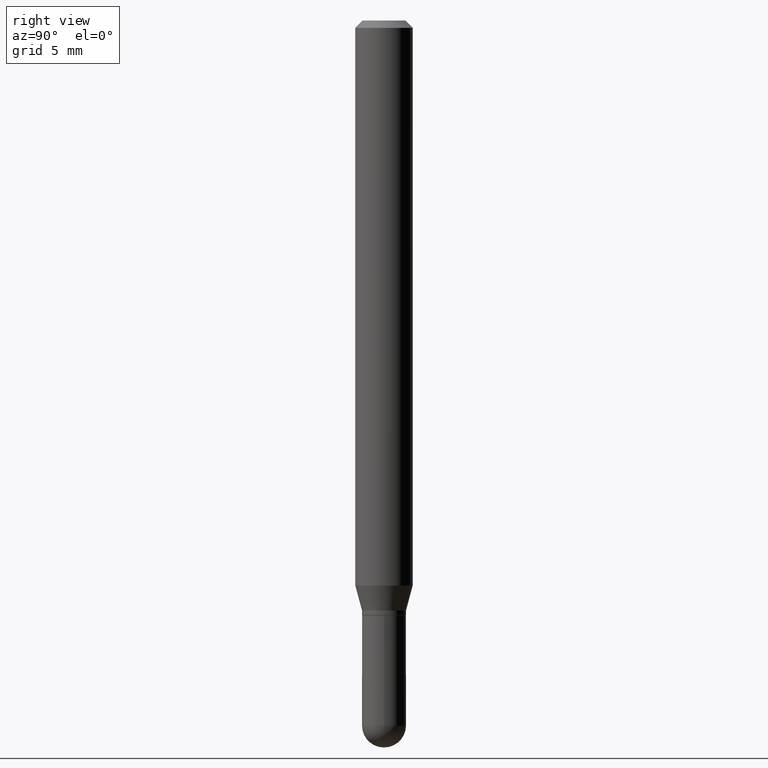
[diagram: clean part render]
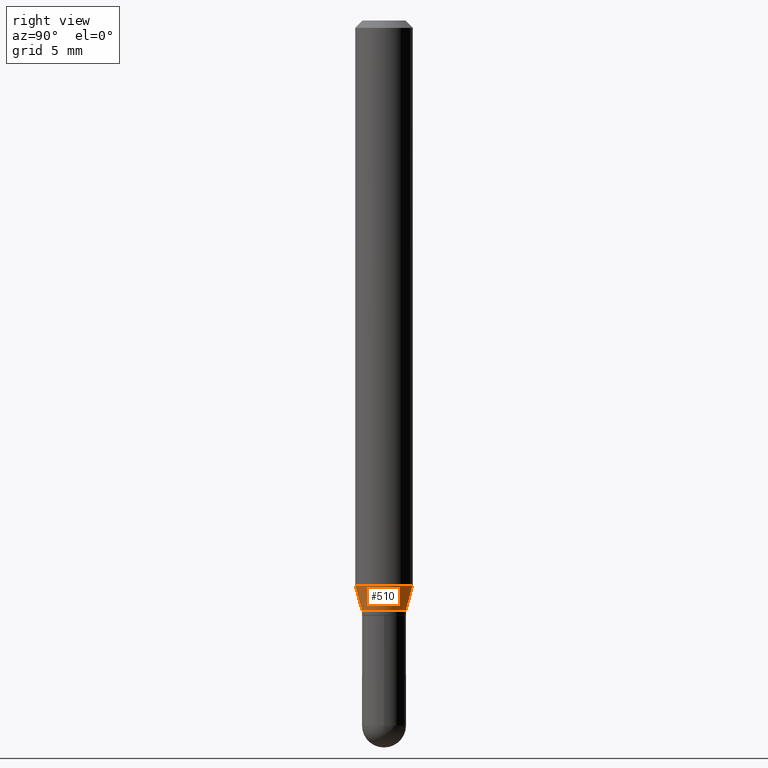
[diagram: same view with one face highlighted and labeled with its STEP entity id]
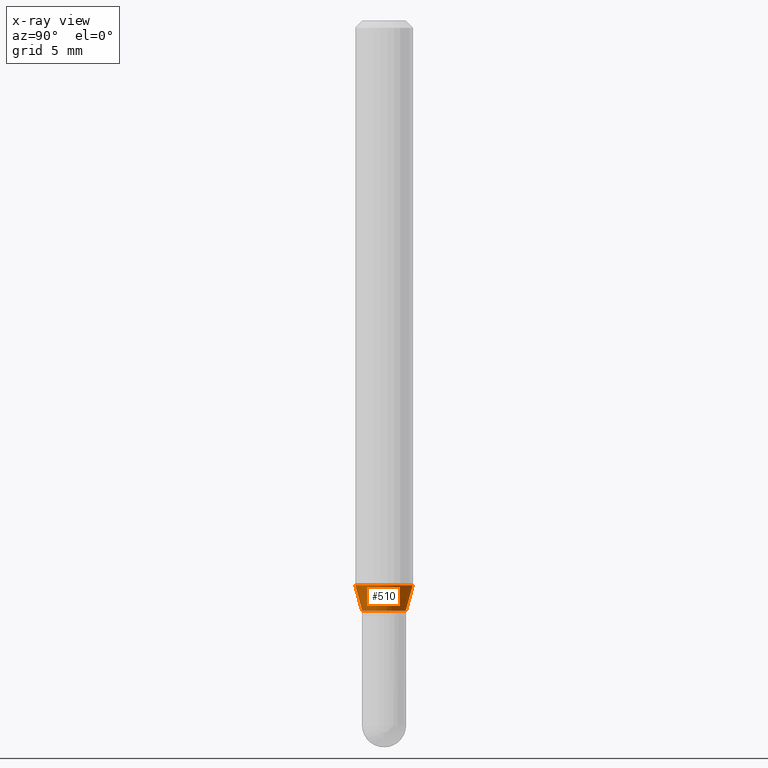
[diagram: x-ray of the same camera — body ghosted, the highlighted face saturated]
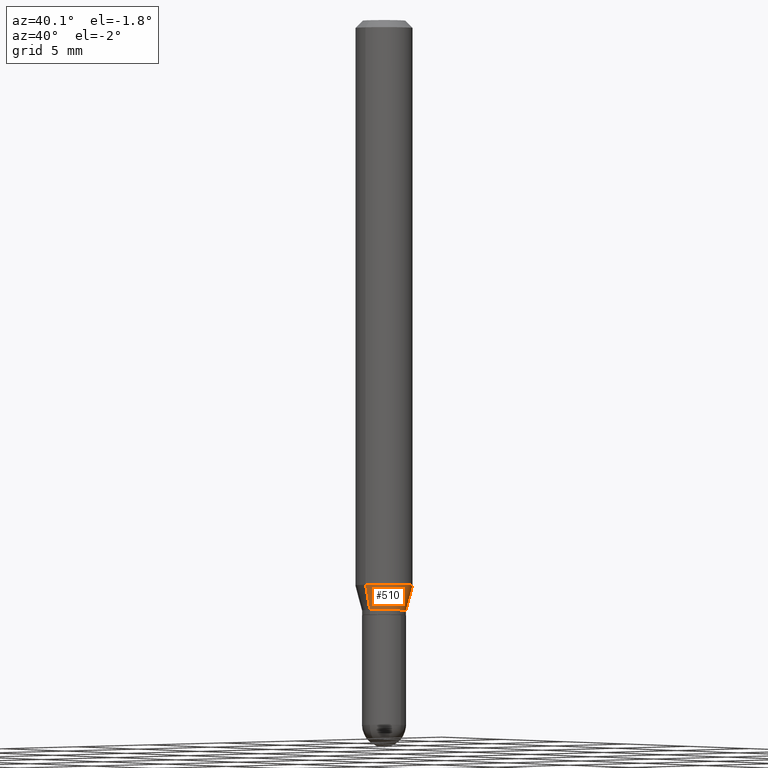
[diagram: same view with one face highlighted and labeled with its STEP entity id]
A machine part, right view. The second image highlights one B-rep face of the part: STEP entity #510.
The next image is the same camera in x-ray: the body ghosted, the highlighted face saturated — about 0% of this face is hidden behind the body in this view.
A second angle (auxiliary view) of the same face is appended — the face is thin or edge-on in the first view.
In plain terms, the highlighted conical surface has half-angle 15 deg.
Its self-contained STEP definition (entity closure, byte-faithful):
#2 = ORIENTED_EDGE ( 'NONE', *, *, #279, .T. ) ;
#9 = DIRECTION ( 'NONE',  ( 1.839019923739599526E-15, 0.2588190451025248473, 0.9659258262890670910 ) ) ;
#23 = EDGE_LOOP ( 'NONE', ( #2, #327, #459, #202 ) ) ;
#35 = EDGE_CURVE ( 'NONE', #124, #436, #233, .T. ) ;
#49 = DIRECTION ( 'NONE',  ( -1.807323732225329350E-15, -0.2588190451025180194, 0.9659258262890689783 ) ) ;
#55 = DIRECTION ( 'NONE',  ( -6.982962677686265922E-15, -1.000000000000000000, 4.626330217890369336E-15 ) ) ;
#63 = EDGE_CURVE ( 'NONE', #342, #340, #322, .T. ) ;
#80 = DIRECTION ( 'NONE',  ( -6.982962677686265133E-15, -1.000000000000000000, 3.015284761218829434E-15 ) ) ;
#116 = CARTESIAN_POINT ( 'NONE',  ( -3.163282092991585987E-16, -0.04530000000000430210, -1.214099999999999957 ) ) ;
#124 = VERTEX_POINT ( 'NONE', #462 ) ;
#133 = CARTESIAN_POINT ( 'NONE',  ( 4.195754854663673989E-16, 0.05904999999999592519, -1.162784301395928699 ) ) ;
#167 = CARTESIAN_POINT ( 'NONE',  ( 3.218758592993554101E-16, 0.04529999999999581584, -1.214100000000000179 ) ) ;
#174 = DIRECTION ( 'NONE',  ( -6.982962677686265133E-15, -1.000000000000000000, 3.015284761218829434E-15 ) ) ;
#176 = CARTESIAN_POINT ( 'NONE',  ( 2.968957360151365244E-29, -4.239131104973575246E-15, -1.214099999999999957 ) ) ;
#182 = FACE_OUTER_BOUND ( 'NONE', #23, .T. ) ;
#202 = ORIENTED_EDGE ( 'NONE', *, *, #35, .F. ) ;
#224 = AXIS2_PLACEMENT_3D ( 'NONE', #331, #371, #55 ) ;
#233 = LINE ( 'NONE', #116, #345 ) ;
#247 = AXIS2_PLACEMENT_3D ( 'NONE', #343, #306, #80 ) ;
#268 = VECTOR ( 'NONE', #9, 39.37007874015748143 ) ;
#279 = EDGE_CURVE ( 'NONE', #124, #342, #318, .T. ) ;
#293 = AXIS2_PLACEMENT_3D ( 'NONE', #176, #496, #174 ) ;
#300 = EDGE_CURVE ( 'NONE', #436, #340, #401, .T. ) ;
#306 = DIRECTION ( 'NONE',  ( -2.445397710362709294E-29, 3.491583152107384375E-15, 1.000000000000000000 ) ) ;
#318 = CIRCLE ( 'NONE', #293, 0.04530000000000006244 ) ;
#322 = LINE ( 'NONE', #167, #268 ) ;
#327 = ORIENTED_EDGE ( 'NONE', *, *, #63, .T. ) ;
#331 = CARTESIAN_POINT ( 'NONE',  ( 2.843470068279305936E-29, -4.059958076288978365E-15, -1.162784301395928255 ) ) ;
#338 = CARTESIAN_POINT ( 'NONE',  ( 3.707256723828616017E-16, 0.04529999999999581584, -1.214100000000000179 ) ) ;
#340 = VERTEX_POINT ( 'NONE', #133 ) ;
#342 = VERTEX_POINT ( 'NONE', #338 ) ;
#343 = CARTESIAN_POINT ( 'NONE',  ( 2.968957360151365244E-29, -4.239131104973575246E-15, -1.214099999999999957 ) ) ;
#345 = VECTOR ( 'NONE', #49, 39.37007874015749564 ) ;
#347 = CARTESIAN_POINT ( 'NONE',  ( -4.123439461173455844E-16, -0.05905000000000406452, -1.162784301395928033 ) ) ;
#371 = DIRECTION ( 'NONE',  ( -2.445397710362709294E-29, 3.491583152107384375E-15, 1.000000000000000000 ) ) ;
#401 = CIRCLE ( 'NONE', #224, 0.05904999999999999832 ) ;
#436 = VERTEX_POINT ( 'NONE', #347 ) ;
#459 = ORIENTED_EDGE ( 'NONE', *, *, #300, .F. ) ;
#462 = CARTESIAN_POINT ( 'NONE',  ( -3.163282092991585987E-16, -0.04530000000000430210, -1.214099999999999957 ) ) ;
#468 = CONICAL_SURFACE ( 'NONE', #247, 0.04530000000000006244, 0.2617993877991501850 ) ;
#496 = DIRECTION ( 'NONE',  ( -2.445397710362709294E-29, 3.491583152107384375E-15, 1.000000000000000000 ) ) ;
#510 = ADVANCED_FACE ( 'NONE', ( #182 ), #468, .T. ) ;